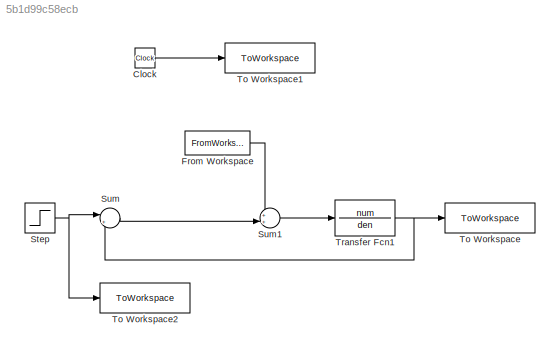
MODEL slx_5b1d99c58ecb
KIND model
CONFIG AbsTol = auto
CONFIG EnableMultiTasking = off
CONFIG FixedStep = tstep
CONFIG MaxStep = auto
CONFIG MinStep = auto
CONFIG RelTol = 1e-3
CONFIG SampleTimeConstraint = Unconstrained
CONFIG SolverName = ode4
CONFIG StartTime = 0.0
CONFIG StopTime = 8.0
BLOCK [Clock] Clock
BLOCK [FromWorkspace] From Workspace
  VariableName = in
BLOCK [Step] Step
  SampleTime = 0
BLOCK [Sum] Sum
  Inputs = |+-
BLOCK [Sum] Sum1
  Inputs = ++|
BLOCK [ToWorkspace] To Workspace
  FixptAsFi = on
  MaxDataPoints = inf
  SampleTime = -1
  Save2DSignal = 2-D array (concatenate along first dimension)
  VariableName = out
BLOCK [ToWorkspace] To Workspace1
  FixptAsFi = on
  MaxDataPoints = inf
  SampleTime = -1
  Save2DSignal = 2-D array (concatenate along first dimension)
  VariableName = time
BLOCK [ToWorkspace] To Workspace2
  FixptAsFi = on
  MaxDataPoints = inf
  SampleTime = -1
  Save2DSignal = 2-D array (concatenate along first dimension)
  VariableName = inp
BLOCK [TransferFcn] Transfer Fcn1
  Denominator = den
  Numerator = num
LINE Clock:1 -> To Workspace1:1
LINE From Workspace:1 -> Sum1:1
NET Step:1 -> Sum:1, To Workspace2:1
LINE Sum1:1 -> Transfer Fcn1:1
LINE Sum:1 -> Sum1:2
NET Transfer Fcn1:1 -> Sum:2, To Workspace:1
note: NET lines group one-source signal fan-out (src -> all destinations, sorted); 1:1 wires keep LINE
